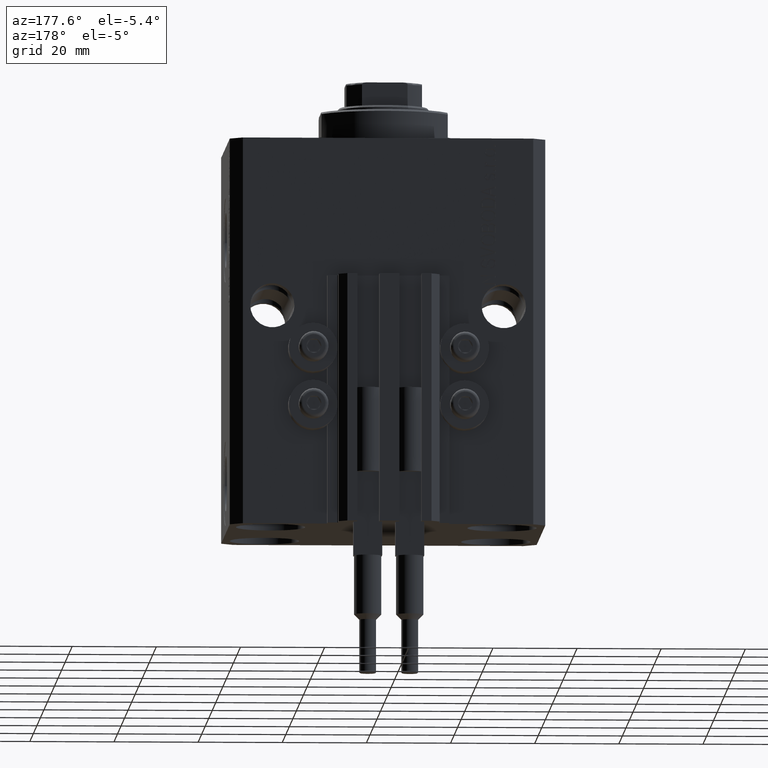
[diagram: clean part render]
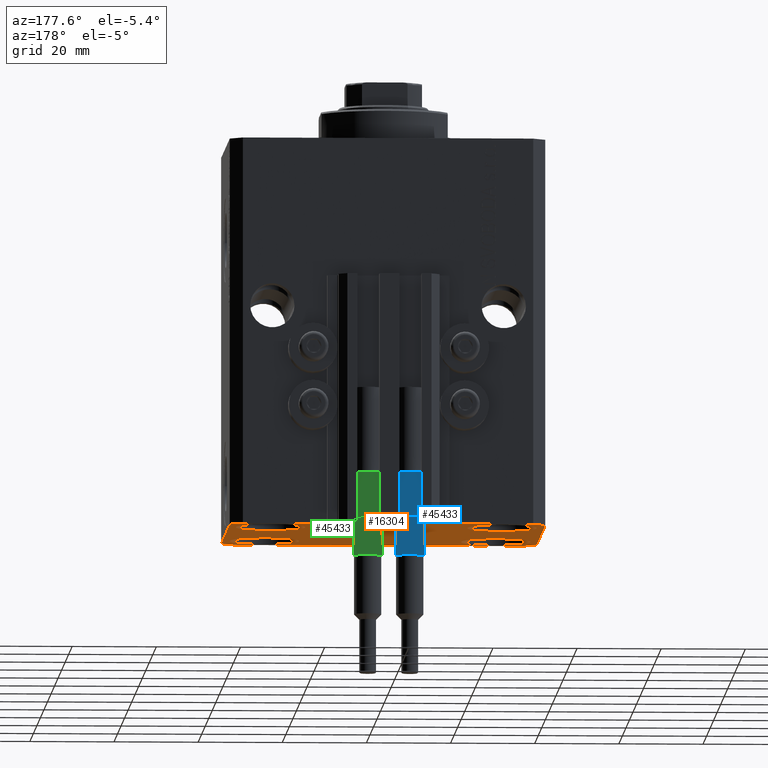
[diagram: same view with three faces highlighted in distinct colors, each labeled with its STEP entity id]
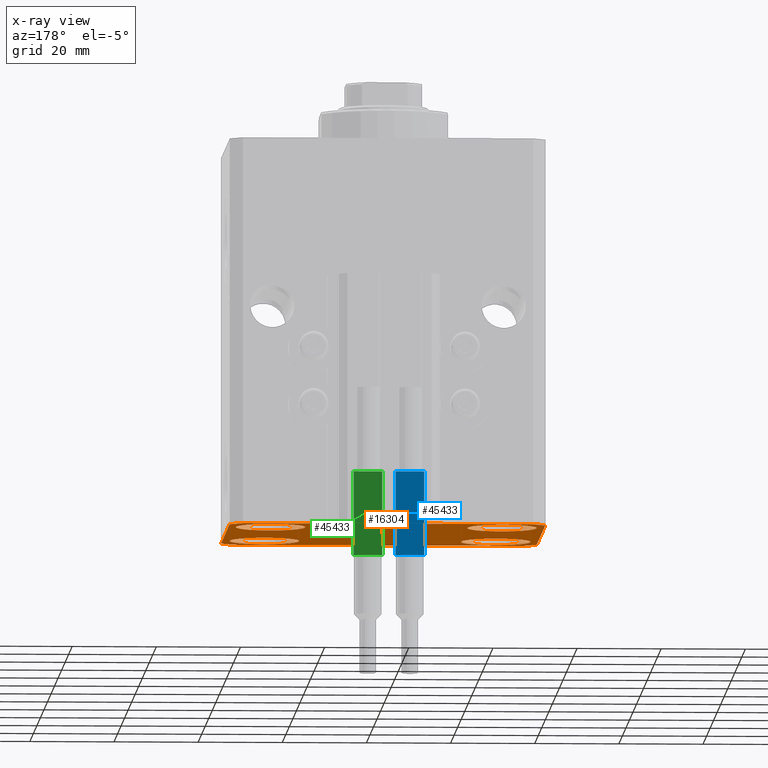
[diagram: x-ray of the same camera — body ghosted, the three highlighted faces saturated]
A machine part, auxiliary view with three faces highlighted in distinct colors.
The next image is the same camera in x-ray (body ghosted, the three faces saturated) — at least one of them is partly hidden behind the body in this view.
Their STEP definitions:

[orange] entity #16304 — the highlighted planar face has unit normal (0, 0, 1).
#893 = AXIS2_PLACEMENT_3D ( 'NONE', #43633, #10240, #25104 ) ;
#1403 = CARTESIAN_POINT ( 'NONE',  ( -37.49999999999999289, 24.50000000000000000, -92.00000000000000000 ) ) ;
#1972 = CIRCLE ( 'NONE', #22942, 8.249999999999992895 ) ;
#2097 = FACE_BOUND ( 'NONE', #46726, .T. ) ;
#2244 = DIRECTION ( 'NONE',  ( -0.000000000000000000, -0.000000000000000000, 1.000000000000000000 ) ) ;
#2545 = VECTOR ( 'NONE', #39548, 1000.000000000000114 ) ;
#2561 = PLANE ( 'NONE',  #7513 ) ;
#2776 = LINE ( 'NONE', #32046, #40870 ) ;
#3287 = VERTEX_POINT ( 'NONE', #36721 ) ;
#3364 = ORIENTED_EDGE ( 'NONE', *, *, #44056, .T. ) ;
#3471 = CARTESIAN_POINT ( 'NONE',  ( 27.49999999999999645, 17.50000000000001066, -92.00000000000000000 ) ) ;
#3573 = DIRECTION ( 'NONE',  ( 1.076236605503979380E-14, 1.000000000000000000, 0.000000000000000000 ) ) ;
#3738 = VECTOR ( 'NONE', #20864, 1000.000000000000000 ) ;
#3939 = AXIS2_PLACEMENT_3D ( 'NONE', #22360, #18459, #44786 ) ;
#4438 = VECTOR ( 'NONE', #16726, 1000.000000000000000 ) ;
#5277 = VERTEX_POINT ( 'NONE', #22368 ) ;
#5520 = FACE_BOUND ( 'NONE', #33484, .T. ) ;
#5536 = LINE ( 'NONE', #1403, #4438 ) ;
#5641 = CIRCLE ( 'NONE', #18829, 8.250000000000000000 ) ;
#5702 = LINE ( 'NONE', #20552, #2545 ) ;
#6235 = FACE_BOUND ( 'NONE', #26428, .T. ) ;
#6417 = VERTEX_POINT ( 'NONE', #30646 ) ;
#6847 = DIRECTION ( 'NONE',  ( -0.000000000000000000, -0.000000000000000000, 1.000000000000000000 ) ) ;
#7050 = EDGE_CURVE ( 'NONE', #3287, #16826, #5641, .T. ) ;
#7321 = DIRECTION ( 'NONE',  ( -0.000000000000000000, -0.000000000000000000, 1.000000000000000000 ) ) ;
#7330 = DIRECTION ( 'NONE',  ( 1.000000000000000000, 0.000000000000000000, 0.000000000000000000 ) ) ;
#7375 = AXIS2_PLACEMENT_3D ( 'NONE', #40205, #6847, #46591 ) ;
#7513 = AXIS2_PLACEMENT_3D ( 'NONE', #17180, #27703, #17420 ) ;
#7736 = CARTESIAN_POINT ( 'NONE',  ( -19.25000000000000355, 17.50000000000000000, -92.00000000000000000 ) ) ;
#8518 = LINE ( 'NONE', #12890, #41547 ) ;
#9344 = EDGE_CURVE ( 'NONE', #5277, #38700, #32915, .T. ) ;
#9607 = CARTESIAN_POINT ( 'NONE',  ( 19.25000000000000000, -17.50000000000000000, -92.00000000000000000 ) ) ;
#9663 = VECTOR ( 'NONE', #36477, 1000.000000000000000 ) ;
#10021 = DIRECTION ( 'NONE',  ( 1.000000000000000000, 0.000000000000000000, 0.000000000000000000 ) ) ;
#10240 = DIRECTION ( 'NONE',  ( -0.000000000000000000, -0.000000000000000000, 1.000000000000000000 ) ) ;
#10393 = CARTESIAN_POINT ( 'NONE',  ( 37.49999999999999289, -24.50000000000000000, -92.00000000000000000 ) ) ;
#10459 = CIRCLE ( 'NONE', #7375, 8.250000000000000000 ) ;
#10599 = DIRECTION ( 'NONE',  ( 1.000000000000000000, 0.000000000000000000, 0.000000000000000000 ) ) ;
#10752 = EDGE_CURVE ( 'NONE', #33862, #24384, #2776, .T. ) ;
#11860 = EDGE_CURVE ( 'NONE', #16826, #3287, #10459, .T. ) ;
#12181 = CARTESIAN_POINT ( 'NONE',  ( -34.49999999999998579, -27.49999999999999645, -92.00000000000000000 ) ) ;
#12890 = CARTESIAN_POINT ( 'NONE',  ( 37.50000000000051870, 24.49999999999995381, -92.00000000000000000 ) ) ;
#13765 = FACE_BOUND ( 'NONE', #35519, .T. ) ;
#14103 = EDGE_LOOP ( 'NONE', ( #32281, #33605, #42320, #41582, #30982, #31148, #33549, #24073 ) ) ;
#14116 = CARTESIAN_POINT ( 'NONE',  ( 35.75000000000000711, -17.50000000000000000, -92.00000000000000000 ) ) ;
#14647 = VERTEX_POINT ( 'NONE', #16877 ) ;
#15066 = CARTESIAN_POINT ( 'NONE',  ( 27.50000000000000355, -17.50000000000000000, -92.00000000000000000 ) ) ;
#16087 = CARTESIAN_POINT ( 'NONE',  ( 27.50000000000000355, -17.50000000000000000, -92.00000000000000000 ) ) ;
#16296 = DIRECTION ( 'NONE',  ( -0.7071067811865356934, 0.7071067811865594521, 0.000000000000000000 ) ) ;
#16304 = ADVANCED_FACE ( 'NONE', ( #2097, #5520, #6235, #13765, #28643 ), #2561, .F. ) ;
#16726 = DIRECTION ( 'NONE',  ( 0.000000000000000000, -1.000000000000000000, 0.000000000000000000 ) ) ;
#16826 = VERTEX_POINT ( 'NONE', #40132 ) ;
#16877 = CARTESIAN_POINT ( 'NONE',  ( 37.50000000000051870, 24.49999999999995381, -92.00000000000000000 ) ) ;
#17180 = CARTESIAN_POINT ( 'NONE',  ( 0.000000000000000000, 0.000000000000000000, -92.00000000000000000 ) ) ;
#17330 = EDGE_CURVE ( 'NONE', #24384, #22475, #5536, .T. ) ;
#17420 = DIRECTION ( 'NONE',  ( 1.000000000000000000, 0.000000000000000000, -0.000000000000000000 ) ) ;
#17883 = CARTESIAN_POINT ( 'NONE',  ( -37.49999999999999289, -24.50000000000000000, -92.00000000000000000 ) ) ;
#18030 = DIRECTION ( 'NONE',  ( -0.000000000000000000, -0.000000000000000000, 1.000000000000000000 ) ) ;
#18459 = DIRECTION ( 'NONE',  ( -0.000000000000000000, -0.000000000000000000, 1.000000000000000000 ) ) ;
#18829 = AXIS2_PLACEMENT_3D ( 'NONE', #37756, #7321, #30460 ) ;
#19020 = EDGE_CURVE ( 'NONE', #43914, #42915, #19299, .T. ) ;
#19299 = CIRCLE ( 'NONE', #37861, 8.250000000000000000 ) ;
#19861 = CARTESIAN_POINT ( 'NONE',  ( -37.49999999999999289, 24.50000000000000000, -92.00000000000000000 ) ) ;
#20372 = ORIENTED_EDGE ( 'NONE', *, *, #19020, .T. ) ;
#20552 = CARTESIAN_POINT ( 'NONE',  ( 34.49999999999999289, -27.49999999999999645, -92.00000000000000000 ) ) ;
#20683 = CARTESIAN_POINT ( 'NONE',  ( 34.50000000000056843, 27.50000000000000000, -92.00000000000000000 ) ) ;
#20864 = DIRECTION ( 'NONE',  ( 0.7071067811865483499, -0.7071067811865466846, 0.000000000000000000 ) ) ;
#21879 = CIRCLE ( 'NONE', #39790, 8.250000000000000000 ) ;
#22360 = CARTESIAN_POINT ( 'NONE',  ( -27.50000000000000355, 17.50000000000000000, -92.00000000000000000 ) ) ;
#22368 = CARTESIAN_POINT ( 'NONE',  ( -35.75000000000000711, 17.50000000000000000, -92.00000000000000000 ) ) ;
#22475 = VERTEX_POINT ( 'NONE', #17883 ) ;
#22942 = AXIS2_PLACEMENT_3D ( 'NONE', #3471, #38055, #26865 ) ;
#23411 = EDGE_CURVE ( 'NONE', #22475, #33142, #43519, .T. ) ;
#24073 = ORIENTED_EDGE ( 'NONE', *, *, #10752, .F. ) ;
#24148 = ORIENTED_EDGE ( 'NONE', *, *, #29746, .T. ) ;
#24384 = VERTEX_POINT ( 'NONE', #19861 ) ;
#25013 = ORIENTED_EDGE ( 'NONE', *, *, #32667, .T. ) ;
#25104 = DIRECTION ( 'NONE',  ( 1.000000000000000000, 0.000000000000000000, 0.000000000000000000 ) ) ;
#25698 = LINE ( 'NONE', #44967, #26424 ) ;
#26105 = EDGE_CURVE ( 'NONE', #33142, #38444, #25698, .T. ) ;
#26424 = VECTOR ( 'NONE', #10599, 1000.000000000000000 ) ;
#26428 = EDGE_LOOP ( 'NONE', ( #45846, #3364 ) ) ;
#26539 = CARTESIAN_POINT ( 'NONE',  ( 34.49999999999999289, -27.49999999999999645, -92.00000000000000000 ) ) ;
#26865 = DIRECTION ( 'NONE',  ( 1.000000000000000000, 0.000000000000000000, 0.000000000000000000 ) ) ;
#27703 = DIRECTION ( 'NONE',  ( 0.000000000000000000, 0.000000000000000000, 1.000000000000000000 ) ) ;
#28410 = VERTEX_POINT ( 'NONE', #45226 ) ;
#28623 = DIRECTION ( 'NONE',  ( -0.7071067811865471286, -0.7071067811865479058, 0.000000000000000000 ) ) ;
#28643 = FACE_OUTER_BOUND ( 'NONE', #14103, .T. ) ;
#29379 = CARTESIAN_POINT ( 'NONE',  ( -34.49999999999999289, 27.50000000000000000, -92.00000000000000000 ) ) ;
#29746 = EDGE_CURVE ( 'NONE', #42915, #43914, #21879, .T. ) ;
#30460 = DIRECTION ( 'NONE',  ( 1.000000000000000000, 0.000000000000000000, 0.000000000000000000 ) ) ;
#30624 = CARTESIAN_POINT ( 'NONE',  ( 19.25000000000000000, 17.50000000000001066, -92.00000000000000000 ) ) ;
#30646 = CARTESIAN_POINT ( 'NONE',  ( 37.49999999999999289, -24.50000000000000000, -92.00000000000000000 ) ) ;
#30982 = ORIENTED_EDGE ( 'NONE', *, *, #26105, .F. ) ;
#31148 = ORIENTED_EDGE ( 'NONE', *, *, #23411, .F. ) ;
#31609 = ORIENTED_EDGE ( 'NONE', *, *, #7050, .T. ) ;
#32046 = CARTESIAN_POINT ( 'NONE',  ( -34.49999999999999289, 27.50000000000000000, -92.00000000000000000 ) ) ;
#32281 = ORIENTED_EDGE ( 'NONE', *, *, #42271, .F. ) ;
#32363 = LINE ( 'NONE', #20683, #9663 ) ;
#32667 = EDGE_CURVE ( 'NONE', #38700, #5277, #47623, .T. ) ;
#32915 = CIRCLE ( 'NONE', #46915, 8.250000000000000000 ) ;
#33100 = EDGE_CURVE ( 'NONE', #35562, #40303, #37437, .T. ) ;
#33142 = VERTEX_POINT ( 'NONE', #12181 ) ;
#33484 = EDGE_LOOP ( 'NONE', ( #20372, #24148 ) ) ;
#33549 = ORIENTED_EDGE ( 'NONE', *, *, #17330, .F. ) ;
#33605 = ORIENTED_EDGE ( 'NONE', *, *, #42137, .F. ) ;
#33862 = VERTEX_POINT ( 'NONE', #29379 ) ;
#34848 = DIRECTION ( 'NONE',  ( 1.000000000000000000, 0.000000000000000000, 0.000000000000000000 ) ) ;
#35519 = EDGE_LOOP ( 'NONE', ( #42773, #25013 ) ) ;
#35521 = EDGE_CURVE ( 'NONE', #6417, #14647, #40848, .T. ) ;
#35562 = VERTEX_POINT ( 'NONE', #30624 ) ;
#36477 = DIRECTION ( 'NONE',  ( -1.000000000000000000, 0.000000000000000000, 0.000000000000000000 ) ) ;
#36721 = CARTESIAN_POINT ( 'NONE',  ( -19.25000000000000355, -17.50000000000000000, -92.00000000000000000 ) ) ;
#36796 = CARTESIAN_POINT ( 'NONE',  ( -27.50000000000000355, 17.50000000000000000, -92.00000000000000000 ) ) ;
#36840 = EDGE_CURVE ( 'NONE', #38444, #6417, #5702, .T. ) ;
#37437 = CIRCLE ( 'NONE', #893, 8.249999999999992895 ) ;
#37756 = CARTESIAN_POINT ( 'NONE',  ( -27.50000000000000355, -17.50000000000000000, -92.00000000000000000 ) ) ;
#37861 = AXIS2_PLACEMENT_3D ( 'NONE', #15066, #2244, #10021 ) ;
#38055 = DIRECTION ( 'NONE',  ( -0.000000000000000000, -0.000000000000000000, 1.000000000000000000 ) ) ;
#38444 = VERTEX_POINT ( 'NONE', #26539 ) ;
#38700 = VERTEX_POINT ( 'NONE', #7736 ) ;
#39152 = CARTESIAN_POINT ( 'NONE',  ( -37.49999999999999289, -24.50000000000000000, -92.00000000000000000 ) ) ;
#39229 = DIRECTION ( 'NONE',  ( -0.000000000000000000, -0.000000000000000000, 1.000000000000000000 ) ) ;
#39548 = DIRECTION ( 'NONE',  ( 0.7071067811865474617, 0.7071067811865474617, 0.000000000000000000 ) ) ;
#39790 = AXIS2_PLACEMENT_3D ( 'NONE', #16087, #39229, #34848 ) ;
#40132 = CARTESIAN_POINT ( 'NONE',  ( -35.75000000000000711, -17.50000000000000000, -92.00000000000000000 ) ) ;
#40205 = CARTESIAN_POINT ( 'NONE',  ( -27.50000000000000355, -17.50000000000000000, -92.00000000000000000 ) ) ;
#40303 = VERTEX_POINT ( 'NONE', #43565 ) ;
#40848 = LINE ( 'NONE', #10393, #45311 ) ;
#40870 = VECTOR ( 'NONE', #28623, 1000.000000000000000 ) ;
#41547 = VECTOR ( 'NONE', #16296, 1000.000000000000114 ) ;
#41582 = ORIENTED_EDGE ( 'NONE', *, *, #36840, .F. ) ;
#42137 = EDGE_CURVE ( 'NONE', #14647, #28410, #8518, .T. ) ;
#42271 = EDGE_CURVE ( 'NONE', #28410, #33862, #32363, .T. ) ;
#42320 = ORIENTED_EDGE ( 'NONE', *, *, #35521, .F. ) ;
#42773 = ORIENTED_EDGE ( 'NONE', *, *, #9344, .T. ) ;
#42915 = VERTEX_POINT ( 'NONE', #14116 ) ;
#43519 = LINE ( 'NONE', #39152, #3738 ) ;
#43565 = CARTESIAN_POINT ( 'NONE',  ( 35.74999999999999289, 17.50000000000001066, -92.00000000000000000 ) ) ;
#43633 = CARTESIAN_POINT ( 'NONE',  ( 27.49999999999999645, 17.50000000000001066, -92.00000000000000000 ) ) ;
#43731 = ORIENTED_EDGE ( 'NONE', *, *, #11860, .T. ) ;
#43914 = VERTEX_POINT ( 'NONE', #9607 ) ;
#44056 = EDGE_CURVE ( 'NONE', #40303, #35562, #1972, .T. ) ;
#44786 = DIRECTION ( 'NONE',  ( 1.000000000000000000, 0.000000000000000000, 0.000000000000000000 ) ) ;
#44967 = CARTESIAN_POINT ( 'NONE',  ( -34.49999999999998579, -27.49999999999999645, -92.00000000000000000 ) ) ;
#45226 = CARTESIAN_POINT ( 'NONE',  ( 34.50000000000056843, 27.50000000000000000, -92.00000000000000000 ) ) ;
#45311 = VECTOR ( 'NONE', #3573, 1000.000000000000000 ) ;
#45846 = ORIENTED_EDGE ( 'NONE', *, *, #33100, .T. ) ;
#46591 = DIRECTION ( 'NONE',  ( 1.000000000000000000, 0.000000000000000000, 0.000000000000000000 ) ) ;
#46726 = EDGE_LOOP ( 'NONE', ( #43731, #31609 ) ) ;
#46915 = AXIS2_PLACEMENT_3D ( 'NONE', #36796, #18030, #7330 ) ;
#47623 = CIRCLE ( 'NONE', #3939, 8.250000000000000000 ) ;

[blue] entity #45433 — the highlighted planar face has unit normal (0, -1, 0).
#138 = CARTESIAN_POINT ( 'NONE',  ( -3.399999999999999911, 1.500000000000000000, 20.00000000000000000 ) ) ;
#704 = ORIENTED_EDGE ( 'NONE', *, *, #33973, .F. ) ;
#1015 = DIRECTION ( 'NONE',  ( -1.000000000000000000, -0.000000000000000000, -0.000000000000000000 ) ) ;
#1143 = VERTEX_POINT ( 'NONE', #9092 ) ;
#2477 = ORIENTED_EDGE ( 'NONE', *, *, #47178, .F. ) ;
#3557 = AXIS2_PLACEMENT_3D ( 'NONE', #18467, #47709, #25529 ) ;
#6617 = VERTEX_POINT ( 'NONE', #35486 ) ;
#6786 = FACE_OUTER_BOUND ( 'NONE', #9470, .T. ) ;
#7239 = CARTESIAN_POINT ( 'NONE',  ( -2.883140648667699146, 1.500000000000000000, 40.00000000000000000 ) ) ;
#7806 = CARTESIAN_POINT ( 'NONE',  ( 3.400000000000000355, 1.500000000000000000, 20.00000000000000000 ) ) ;
#7826 = DIRECTION ( 'NONE',  ( -1.000000000000000000, -0.000000000000000000, -0.000000000000000000 ) ) ;
#8650 = DIRECTION ( 'NONE',  ( -1.000000000000000000, -0.000000000000000000, -0.000000000000000000 ) ) ;
#9092 = CARTESIAN_POINT ( 'NONE',  ( -3.051229260478471428, 1.500000000000000000, 20.00000000000000000 ) ) ;
#9470 = EDGE_LOOP ( 'NONE', ( #40478, #31283, #36549, #2477, #11656, #46101, #704, #29486 ) ) ;
#9799 = DIRECTION ( 'NONE',  ( -1.000000000000000000, -0.000000000000000000, -0.000000000000000000 ) ) ;
#11476 = LINE ( 'NONE', #26340, #25014 ) ;
#11656 = ORIENTED_EDGE ( 'NONE', *, *, #29725, .F. ) ;
#11725 = LINE ( 'NONE', #34140, #34381 ) ;
#12303 = CARTESIAN_POINT ( 'NONE',  ( -3.399999999999999911, 1.500000000000000000, 40.00000000000000000 ) ) ;
#14465 = VECTOR ( 'NONE', #26693, 1000.000000000000000 ) ;
#15520 = DIRECTION ( 'NONE',  ( -0.000000000000000000, -0.000000000000000000, -1.000000000000000000 ) ) ;
#18467 = CARTESIAN_POINT ( 'NONE',  ( -3.399999999999999911, 1.500000000000000000, 40.00000000000000000 ) ) ;
#18789 = VECTOR ( 'NONE', #8650, 1000.000000000000000 ) ;
#18954 = EDGE_CURVE ( 'NONE', #32372, #6617, #22384, .T. ) ;
#19641 = LINE ( 'NONE', #34497, #45557 ) ;
#19908 = CARTESIAN_POINT ( 'NONE',  ( 3.400000000000000355, 1.500000000000000000, 40.00000000000000000 ) ) ;
#20147 = LINE ( 'NONE', #19908, #38490 ) ;
#20490 = VERTEX_POINT ( 'NONE', #36629 ) ;
#22384 = LINE ( 'NONE', #26036, #38746 ) ;
#24083 = VERTEX_POINT ( 'NONE', #38185 ) ;
#24232 = CARTESIAN_POINT ( 'NONE',  ( 3.400000000000000355, 1.500000000000000000, 40.00000000000000000 ) ) ;
#25014 = VECTOR ( 'NONE', #7826, 1000.000000000000000 ) ;
#25050 = PLANE ( 'NONE',  #3557 ) ;
#25529 = DIRECTION ( 'NONE',  ( 0.000000000000000000, -0.000000000000000000, -1.000000000000000000 ) ) ;
#26036 = CARTESIAN_POINT ( 'NONE',  ( -3.399999999999999911, 1.500000000000000000, 20.00000000000000000 ) ) ;
#26212 = LINE ( 'NONE', #138, #14465 ) ;
#26340 = CARTESIAN_POINT ( 'NONE',  ( -3.399999999999999911, 1.500000000000000000, 40.00000000000000000 ) ) ;
#26693 = DIRECTION ( 'NONE',  ( -1.000000000000000000, -0.000000000000000000, -0.000000000000000000 ) ) ;
#29486 = ORIENTED_EDGE ( 'NONE', *, *, #42492, .T. ) ;
#29725 = EDGE_CURVE ( 'NONE', #35495, #24083, #11476, .T. ) ;
#30066 = CARTESIAN_POINT ( 'NONE',  ( -3.399999999999999911, 1.500000000000000000, 40.00000000000000000 ) ) ;
#31283 = ORIENTED_EDGE ( 'NONE', *, *, #47698, .T. ) ;
#31284 = EDGE_CURVE ( 'NONE', #20490, #35495, #11725, .T. ) ;
#32372 = VERTEX_POINT ( 'NONE', #7806 ) ;
#33705 = LINE ( 'NONE', #30066, #39396 ) ;
#33972 = VERTEX_POINT ( 'NONE', #24232 ) ;
#33973 = EDGE_CURVE ( 'NONE', #33972, #20490, #45696, .T. ) ;
#34140 = CARTESIAN_POINT ( 'NONE',  ( -3.399999999999999911, 1.500000000000000000, 40.00000000000000000 ) ) ;
#34381 = VECTOR ( 'NONE', #1015, 1000.000000000000000 ) ;
#34497 = CARTESIAN_POINT ( 'NONE',  ( -3.399999999999999911, 1.500000000000000000, 20.00000000000000000 ) ) ;
#35486 = CARTESIAN_POINT ( 'NONE',  ( 3.051229260478471428, 1.500000000000000000, 20.00000000000000000 ) ) ;
#35495 = VERTEX_POINT ( 'NONE', #7239 ) ;
#36549 = ORIENTED_EDGE ( 'NONE', *, *, #45828, .T. ) ;
#36629 = CARTESIAN_POINT ( 'NONE',  ( 2.883140648667699146, 1.500000000000000000, 40.00000000000000000 ) ) ;
#37749 = VERTEX_POINT ( 'NONE', #40168 ) ;
#38185 = CARTESIAN_POINT ( 'NONE',  ( -3.399999999999999911, 1.500000000000000000, 40.00000000000000000 ) ) ;
#38490 = VECTOR ( 'NONE', #15520, 1000.000000000000000 ) ;
#38746 = VECTOR ( 'NONE', #9799, 1000.000000000000000 ) ;
#39396 = VECTOR ( 'NONE', #44929, 1000.000000000000000 ) ;
#40168 = CARTESIAN_POINT ( 'NONE',  ( -3.399999999999999911, 1.500000000000000000, 20.00000000000000000 ) ) ;
#40478 = ORIENTED_EDGE ( 'NONE', *, *, #18954, .T. ) ;
#41089 = DIRECTION ( 'NONE',  ( -1.000000000000000000, -0.000000000000000000, -0.000000000000000000 ) ) ;
#42492 = EDGE_CURVE ( 'NONE', #33972, #32372, #20147, .T. ) ;
#44929 = DIRECTION ( 'NONE',  ( -0.000000000000000000, -0.000000000000000000, -1.000000000000000000 ) ) ;
#45433 = ADVANCED_FACE ( 'NONE', ( #6786 ), #25050, .F. ) ;
#45557 = VECTOR ( 'NONE', #41089, 1000.000000000000000 ) ;
#45696 = LINE ( 'NONE', #12303, #18789 ) ;
#45828 = EDGE_CURVE ( 'NONE', #1143, #37749, #26212, .T. ) ;
#46101 = ORIENTED_EDGE ( 'NONE', *, *, #31284, .F. ) ;
#47178 = EDGE_CURVE ( 'NONE', #24083, #37749, #33705, .T. ) ;
#47698 = EDGE_CURVE ( 'NONE', #6617, #1143, #19641, .T. ) ;
#47709 = DIRECTION ( 'NONE',  ( 0.000000000000000000, -1.000000000000000000, 0.000000000000000000 ) ) ;

[green] entity #45433 — the highlighted planar face has unit normal (0, -1, 0).
#138 = CARTESIAN_POINT ( 'NONE',  ( -3.399999999999999911, 1.500000000000000000, 20.00000000000000000 ) ) ;
#704 = ORIENTED_EDGE ( 'NONE', *, *, #33973, .F. ) ;
#1015 = DIRECTION ( 'NONE',  ( -1.000000000000000000, -0.000000000000000000, -0.000000000000000000 ) ) ;
#1143 = VERTEX_POINT ( 'NONE', #9092 ) ;
#2477 = ORIENTED_EDGE ( 'NONE', *, *, #47178, .F. ) ;
#3557 = AXIS2_PLACEMENT_3D ( 'NONE', #18467, #47709, #25529 ) ;
#6617 = VERTEX_POINT ( 'NONE', #35486 ) ;
#6786 = FACE_OUTER_BOUND ( 'NONE', #9470, .T. ) ;
#7239 = CARTESIAN_POINT ( 'NONE',  ( -2.883140648667699146, 1.500000000000000000, 40.00000000000000000 ) ) ;
#7806 = CARTESIAN_POINT ( 'NONE',  ( 3.400000000000000355, 1.500000000000000000, 20.00000000000000000 ) ) ;
#7826 = DIRECTION ( 'NONE',  ( -1.000000000000000000, -0.000000000000000000, -0.000000000000000000 ) ) ;
#8650 = DIRECTION ( 'NONE',  ( -1.000000000000000000, -0.000000000000000000, -0.000000000000000000 ) ) ;
#9092 = CARTESIAN_POINT ( 'NONE',  ( -3.051229260478471428, 1.500000000000000000, 20.00000000000000000 ) ) ;
#9470 = EDGE_LOOP ( 'NONE', ( #40478, #31283, #36549, #2477, #11656, #46101, #704, #29486 ) ) ;
#9799 = DIRECTION ( 'NONE',  ( -1.000000000000000000, -0.000000000000000000, -0.000000000000000000 ) ) ;
#11476 = LINE ( 'NONE', #26340, #25014 ) ;
#11656 = ORIENTED_EDGE ( 'NONE', *, *, #29725, .F. ) ;
#11725 = LINE ( 'NONE', #34140, #34381 ) ;
#12303 = CARTESIAN_POINT ( 'NONE',  ( -3.399999999999999911, 1.500000000000000000, 40.00000000000000000 ) ) ;
#14465 = VECTOR ( 'NONE', #26693, 1000.000000000000000 ) ;
#15520 = DIRECTION ( 'NONE',  ( -0.000000000000000000, -0.000000000000000000, -1.000000000000000000 ) ) ;
#18467 = CARTESIAN_POINT ( 'NONE',  ( -3.399999999999999911, 1.500000000000000000, 40.00000000000000000 ) ) ;
#18789 = VECTOR ( 'NONE', #8650, 1000.000000000000000 ) ;
#18954 = EDGE_CURVE ( 'NONE', #32372, #6617, #22384, .T. ) ;
#19641 = LINE ( 'NONE', #34497, #45557 ) ;
#19908 = CARTESIAN_POINT ( 'NONE',  ( 3.400000000000000355, 1.500000000000000000, 40.00000000000000000 ) ) ;
#20147 = LINE ( 'NONE', #19908, #38490 ) ;
#20490 = VERTEX_POINT ( 'NONE', #36629 ) ;
#22384 = LINE ( 'NONE', #26036, #38746 ) ;
#24083 = VERTEX_POINT ( 'NONE', #38185 ) ;
#24232 = CARTESIAN_POINT ( 'NONE',  ( 3.400000000000000355, 1.500000000000000000, 40.00000000000000000 ) ) ;
#25014 = VECTOR ( 'NONE', #7826, 1000.000000000000000 ) ;
#25050 = PLANE ( 'NONE',  #3557 ) ;
#25529 = DIRECTION ( 'NONE',  ( 0.000000000000000000, -0.000000000000000000, -1.000000000000000000 ) ) ;
#26036 = CARTESIAN_POINT ( 'NONE',  ( -3.399999999999999911, 1.500000000000000000, 20.00000000000000000 ) ) ;
#26212 = LINE ( 'NONE', #138, #14465 ) ;
#26340 = CARTESIAN_POINT ( 'NONE',  ( -3.399999999999999911, 1.500000000000000000, 40.00000000000000000 ) ) ;
#26693 = DIRECTION ( 'NONE',  ( -1.000000000000000000, -0.000000000000000000, -0.000000000000000000 ) ) ;
#29486 = ORIENTED_EDGE ( 'NONE', *, *, #42492, .T. ) ;
#29725 = EDGE_CURVE ( 'NONE', #35495, #24083, #11476, .T. ) ;
#30066 = CARTESIAN_POINT ( 'NONE',  ( -3.399999999999999911, 1.500000000000000000, 40.00000000000000000 ) ) ;
#31283 = ORIENTED_EDGE ( 'NONE', *, *, #47698, .T. ) ;
#31284 = EDGE_CURVE ( 'NONE', #20490, #35495, #11725, .T. ) ;
#32372 = VERTEX_POINT ( 'NONE', #7806 ) ;
#33705 = LINE ( 'NONE', #30066, #39396 ) ;
#33972 = VERTEX_POINT ( 'NONE', #24232 ) ;
#33973 = EDGE_CURVE ( 'NONE', #33972, #20490, #45696, .T. ) ;
#34140 = CARTESIAN_POINT ( 'NONE',  ( -3.399999999999999911, 1.500000000000000000, 40.00000000000000000 ) ) ;
#34381 = VECTOR ( 'NONE', #1015, 1000.000000000000000 ) ;
#34497 = CARTESIAN_POINT ( 'NONE',  ( -3.399999999999999911, 1.500000000000000000, 20.00000000000000000 ) ) ;
#35486 = CARTESIAN_POINT ( 'NONE',  ( 3.051229260478471428, 1.500000000000000000, 20.00000000000000000 ) ) ;
#35495 = VERTEX_POINT ( 'NONE', #7239 ) ;
#36549 = ORIENTED_EDGE ( 'NONE', *, *, #45828, .T. ) ;
#36629 = CARTESIAN_POINT ( 'NONE',  ( 2.883140648667699146, 1.500000000000000000, 40.00000000000000000 ) ) ;
#37749 = VERTEX_POINT ( 'NONE', #40168 ) ;
#38185 = CARTESIAN_POINT ( 'NONE',  ( -3.399999999999999911, 1.500000000000000000, 40.00000000000000000 ) ) ;
#38490 = VECTOR ( 'NONE', #15520, 1000.000000000000000 ) ;
#38746 = VECTOR ( 'NONE', #9799, 1000.000000000000000 ) ;
#39396 = VECTOR ( 'NONE', #44929, 1000.000000000000000 ) ;
#40168 = CARTESIAN_POINT ( 'NONE',  ( -3.399999999999999911, 1.500000000000000000, 20.00000000000000000 ) ) ;
#40478 = ORIENTED_EDGE ( 'NONE', *, *, #18954, .T. ) ;
#41089 = DIRECTION ( 'NONE',  ( -1.000000000000000000, -0.000000000000000000, -0.000000000000000000 ) ) ;
#42492 = EDGE_CURVE ( 'NONE', #33972, #32372, #20147, .T. ) ;
#44929 = DIRECTION ( 'NONE',  ( -0.000000000000000000, -0.000000000000000000, -1.000000000000000000 ) ) ;
#45433 = ADVANCED_FACE ( 'NONE', ( #6786 ), #25050, .F. ) ;
#45557 = VECTOR ( 'NONE', #41089, 1000.000000000000000 ) ;
#45696 = LINE ( 'NONE', #12303, #18789 ) ;
#45828 = EDGE_CURVE ( 'NONE', #1143, #37749, #26212, .T. ) ;
#46101 = ORIENTED_EDGE ( 'NONE', *, *, #31284, .F. ) ;
#47178 = EDGE_CURVE ( 'NONE', #24083, #37749, #33705, .T. ) ;
#47698 = EDGE_CURVE ( 'NONE', #6617, #1143, #19641, .T. ) ;
#47709 = DIRECTION ( 'NONE',  ( 0.000000000000000000, -1.000000000000000000, 0.000000000000000000 ) ) ;